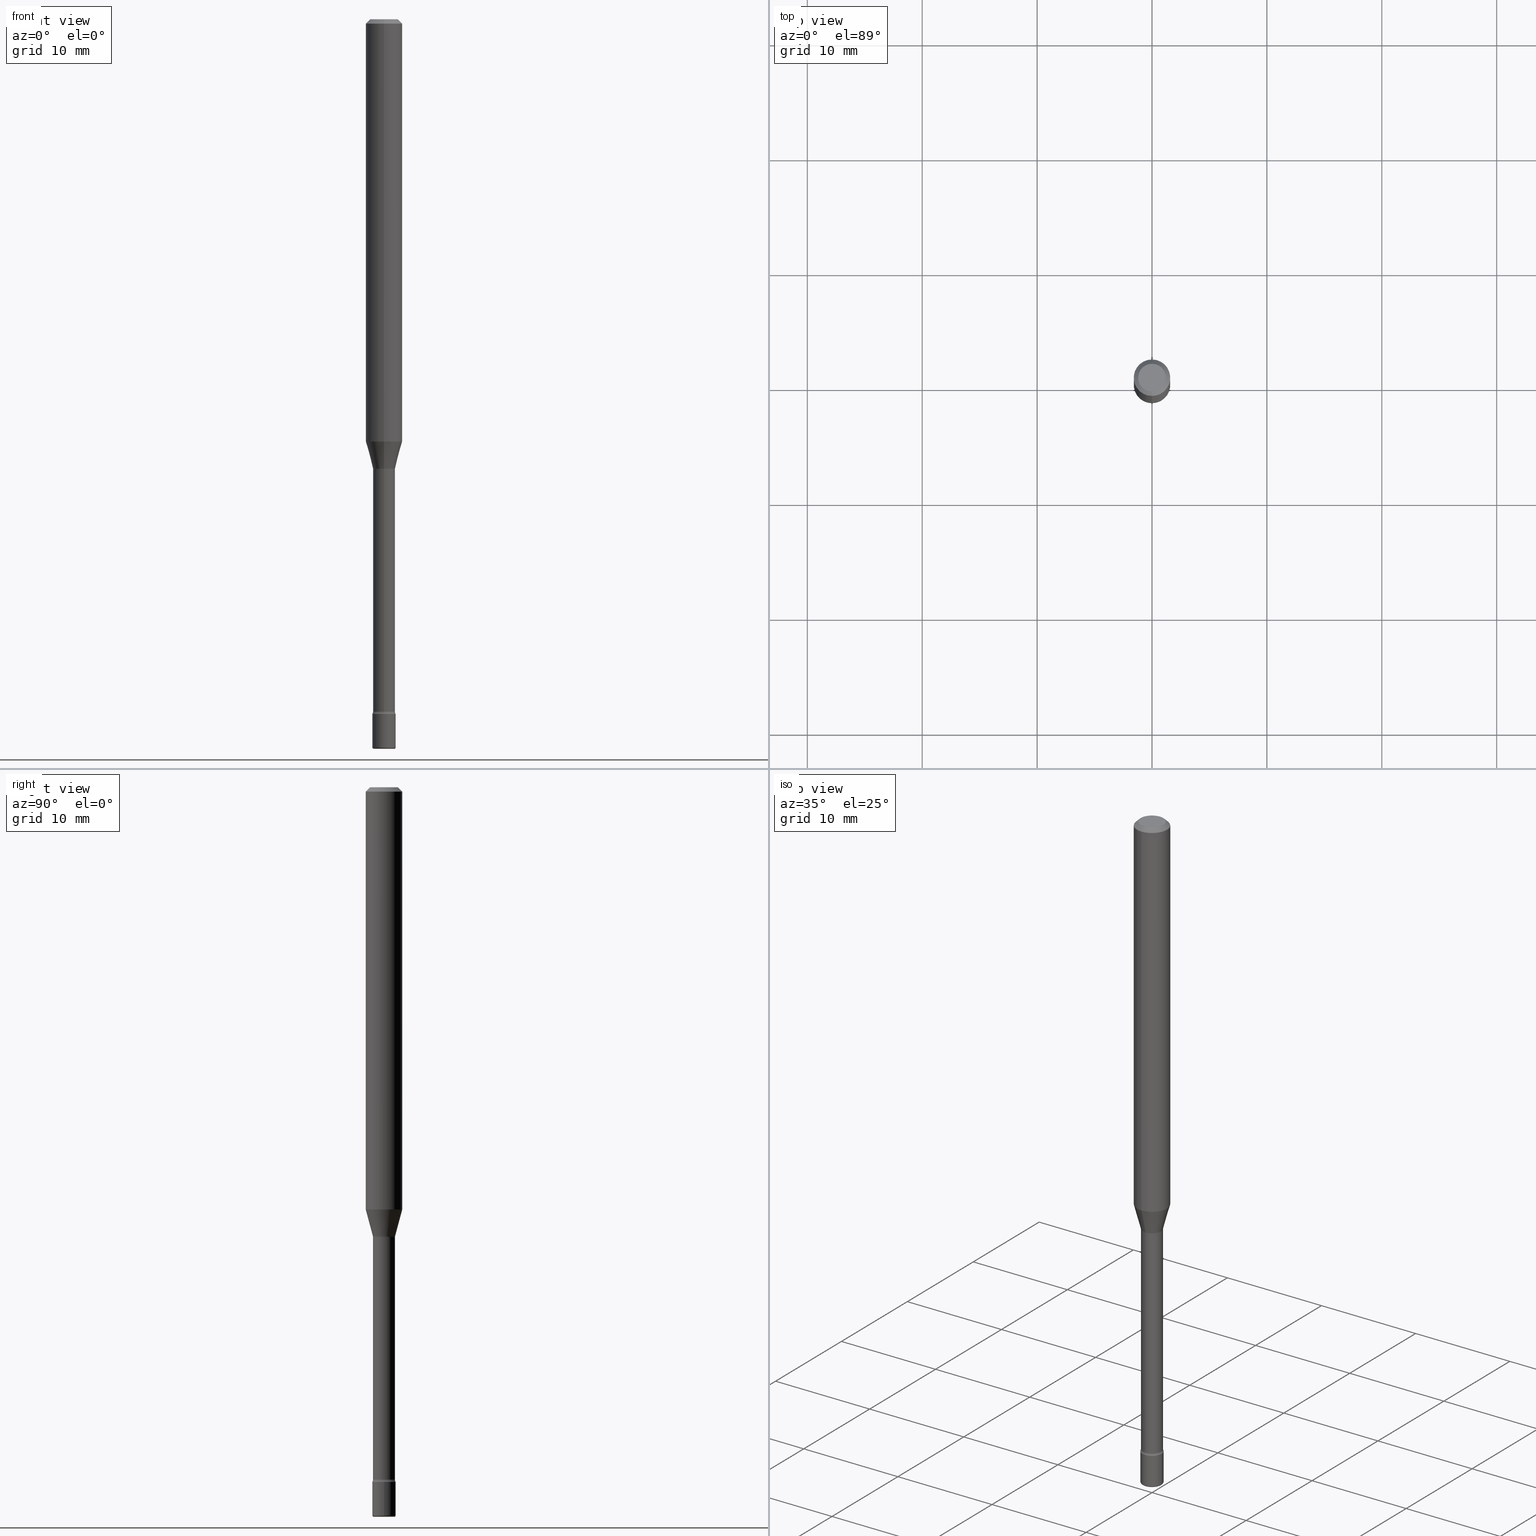
[diagram: canonical four-view strip — front | top / right | iso, engineering-drawing reading convention]
A machine part, canonical four-view strip (front | top / right | iso — engineering-drawing reading convention). The complete STEP part file that produces these views, byte-faithful:
ISO-10303-21;
HEADER;
FILE_DESCRIPTION (( 'STEP AP203' ),
    '1' );
FILE_NAME ('08943.STEP',
    '2024-03-06T20:11:49',
    ( '' ),
    ( '' ),
    'SwSTEP 2.0',
    'SolidWorks 2023',
    '' );
FILE_SCHEMA (( 'CONFIG_CONTROL_DESIGN' ));
ENDSEC;

DATA;
#1 = PERSON_AND_ORGANIZATION_ROLE ( 'design_supplier' ) ;
#2 = PLANE ( 'NONE',  #522 ) ;
#3 = ORIENTED_EDGE ( 'NONE', *, *, #94, .F. ) ;
#4 = DIRECTION ( 'NONE',  ( -2.445468806185136597E-29, 3.491481338843145583E-15, 1.000000000000000000 ) ) ;
#5 = ORIENTED_EDGE ( 'NONE', *, *, #101, .F. ) ;
#6 = CARTESIAN_POINT ( 'NONE',  ( 3.667972644630171939E-31, -5.237552189962929655E-17, -0.01500000000000002720 ) ) ;
#7 = VECTOR ( 'NONE', #489, 39.37007874015748143 ) ;
#8 = AXIS2_PLACEMENT_3D ( 'NONE', #302, #345, #468 ) ;
#9 = LOCAL_TIME ( 15, 11, 49.00000000000000000, #123 ) ;
#10 = ORIENTED_EDGE ( 'NONE', *, *, #471, .T. ) ;
#11 = DIRECTION ( 'NONE',  ( 6.982962677686265922E-15, 1.000000000000000000, -3.483106191921935554E-15 ) ) ;
#12 = EDGE_CURVE ( 'NONE', #425, #402, #155, .T. ) ;
#13 = APPROVAL_STATUS ( 'not_yet_approved' ) ;
#14 = ORIENTED_EDGE ( 'NONE', *, *, #342, .F. ) ;
#15 = CARTESIAN_POINT ( 'NONE',  ( 3.761120814310994028E-29, -5.370559834067651878E-15, -1.538092501787273081 ) ) ;
#16 = ORIENTED_EDGE ( 'NONE', *, *, #304, .F. ) ;
#17 = DIRECTION ( 'NONE',  ( -2.445468806185136597E-29, 3.491481338843145583E-15, 1.000000000000000000 ) ) ;
#18 = APPROVAL ( #126, 'UNSPECIFIED' ) ;
#19 = ORIENTED_EDGE ( 'NONE', *, *, #94, .T. ) ;
#20 = CLOSED_SHELL ( 'NONE', ( #288, #57, #475, #523, #246, #132 ) ) ;
#21 = LOCAL_TIME ( 15, 11, 49.00000000000000000, #397 ) ;
#22 = CARTESIAN_POINT ( 'NONE',  ( 2.707957421369348639E-16, 0.03811111260565861608, -1.538092501787273081 ) ) ;
#23 = ORIENTED_EDGE ( 'NONE', *, *, #342, .T. ) ;
#24 = PLANE ( 'NONE',  #301 ) ;
#25 = DIRECTION ( 'NONE',  ( -6.982962677686265922E-15, -1.000000000000000000, 3.491701459975280701E-15 ) ) ;
#26 = ORIENTED_EDGE ( 'NONE', *, *, #469, .T. ) ;
#27 = CARTESIAN_POINT ( 'NONE',  ( 2.793185071075088075E-16, 0.03999999999999169498, -2.380000000000000338 ) ) ;
#28 = FACE_OUTER_BOUND ( 'NONE', #226, .T. ) ;
#29 = DIRECTION ( 'NONE',  ( -6.982962677686265922E-15, -1.000000000000000000, 0.000000000000000000 ) ) ;
#30 = ORIENTED_EDGE ( 'NONE', *, *, #350, .F. ) ;
#31 = AXIS2_PLACEMENT_3D ( 'NONE', #440, #237, #279 ) ;
#32 = CC_DESIGN_APPROVAL ( #18, ( #116 ) ) ;
#33 = DIRECTION ( 'NONE',  ( 1.000000000000000000, -7.105427357601001070E-15, 4.926318204248481480E-29 ) ) ;
#34 = EDGE_CURVE ( 'NONE', #270, #149, #428, .T. ) ;
#35 = ORIENTED_EDGE ( 'NONE', *, *, #298, .T. ) ;
#36 = ADVANCED_FACE ( 'NONE', ( #206 ), #188, .F. ) ;
#37 = VECTOR ( 'NONE', #395, 39.37007874015748143 ) ;
#38 = EDGE_CURVE ( 'NONE', #455, #402, #380, .T. ) ;
#39 = TOROIDAL_SURFACE ( 'NONE', #8, 0.05260000000000000786, 0.01500000000000002720 ) ;
#40 = CIRCLE ( 'NONE', #369, 0.04000000000000000083 ) ;
#41 = DIRECTION ( 'NONE',  ( 1.000000000000000000, -6.982962677686274599E-15, 4.883557194083115143E-29 ) ) ;
#42 = PERSON_AND_ORGANIZATION ( #530, #390 ) ;
#43 = EDGE_CURVE ( 'NONE', #183, #494, #463, .T. ) ;
#44 = DIRECTION ( 'NONE',  ( -2.445315096420110410E-29, 3.491701459975279518E-15, 1.000000000000000000 ) ) ;
#45 = ORIENTED_EDGE ( 'NONE', *, *, #203, .F. ) ;
#46 = DIRECTION ( 'NONE',  ( 2.445315096420110410E-29, -3.491701459975279518E-15, -1.000000000000000000 ) ) ;
#47 = EDGE_LOOP ( 'NONE', ( #422, #144, #60, #35 ) ) ;
#48 = EDGE_CURVE ( 'NONE', #191, #505, #133, .T. ) ;
#49 = DIRECTION ( 'NONE',  ( 1.000000000000000000, -6.982962677686265922E-15, 4.876176775795935793E-29 ) ) ;
#50 = AXIS2_PLACEMENT_3D ( 'NONE', #110, #249, #424 ) ;
#51 = CARTESIAN_POINT ( 'NONE',  ( -3.673038368462599455E-16, -0.05260000000000539244, -1.541974787463810781 ) ) ;
#52 = EDGE_LOOP ( 'NONE', ( #415, #500, #278, #554 ) ) ;
#53 = CARTESIAN_POINT ( 'NONE',  ( -0.03500000000000000333, -8.462555982897612254E-15, -2.495000000000000107 ) ) ;
#54 = APPLICATION_CONTEXT ( 'configuration controlled 3d designs of mechanical parts and assemblies' ) ;
#55 = ORIENTED_EDGE ( 'NONE', *, *, #403, .T. ) ;
#56 = CYLINDRICAL_SURFACE ( 'NONE', #316, 0.04000000000000000083 ) ;
#57 = ADVANCED_FACE ( 'NONE', ( #28 ), #512, .T. ) ;
#58 = CARTESIAN_POINT ( 'NONE',  ( 5.800312587032241644E-29, -8.281309132162736146E-15, -2.371861204020250025 ) ) ;
#59 = DIRECTION ( 'NONE',  ( 1.000000000000000000, -6.982962677686259611E-15, 0.000000000000000000 ) ) ;
#60 = ORIENTED_EDGE ( 'NONE', *, *, #257, .T. ) ;
#61 = DIRECTION ( 'NONE',  ( -2.445315096420110410E-29, 3.491701459975279518E-15, 1.000000000000000000 ) ) ;
#62 = CARTESIAN_POINT ( 'NONE',  ( 3.667972644630171939E-31, -5.237552189962929655E-17, -0.01500000000000002720 ) ) ;
#63 = ORIENTED_EDGE ( 'NONE', *, *, #165, .F. ) ;
#64 = AXIS2_PLACEMENT_3D ( 'NONE', #15, #368, #241 ) ;
#65 = CIRCLE ( 'NONE', #169, 0.03811111260566397985 ) ;
#66 = EDGE_LOOP ( 'NONE', ( #287, #326, #442, #224 ) ) ;
#67 = DIRECTION ( 'NONE',  ( -2.445315096420110410E-29, 3.491701459975279518E-15, 1.000000000000000000 ) ) ;
#68 = CC_DESIGN_DATE_AND_TIME_ASSIGNMENT ( #180, #289, ( #255 ) ) ;
#69 = VERTEX_POINT ( 'NONE', #355 ) ;
#70 = PRODUCT_DEFINITION_SHAPE ( 'NONE', 'NONE',  #116 ) ;
#71 = ADVANCED_FACE ( 'NONE', ( #493 ), #281, .T. ) ;
#72 = ORIENTED_EDGE ( 'NONE', *, *, #209, .F. ) ;
#73 = VECTOR ( 'NONE', #393, 39.37007874015748143 ) ;
#74 = AXIS2_PLACEMENT_3D ( 'NONE', #477, #80, #265 ) ;
#75 = DIRECTION ( 'NONE',  ( -6.982962677686265922E-15, -1.000000000000000000, 3.491701459975279518E-15 ) ) ;
#76 = CIRCLE ( 'NONE', #570, 0.06250000000000000000 ) ;
#77 =( GEOMETRIC_REPRESENTATION_CONTEXT ( 3 ) GLOBAL_UNCERTAINTY_ASSIGNED_CONTEXT ( ( #95 ) ) GLOBAL_UNIT_ASSIGNED_CONTEXT ( ( #525, #411, #137 ) ) REPRESENTATION_CONTEXT ( 'NONE', 'WORKASPACE' ) );
#78 = DIRECTION ( 'NONE',  ( -2.445315096420110410E-29, 3.491701459975279518E-15, 1.000000000000000000 ) ) ;
#79 = CARTESIAN_POINT ( 'NONE',  ( 4.440892098500625669E-16, 0.06250000000000000000, 2.598420576427910934E-16 ) ) ;
#80 = DIRECTION ( 'NONE',  ( -2.445315096420110410E-29, 3.491701459975279518E-15, 1.000000000000000000 ) ) ;
#81 = ADVANCED_FACE ( 'NONE', ( #443 ), #432, .T. ) ;
#82 = COORDINATED_UNIVERSAL_TIME_OFFSET ( 5, 0, .BEHIND. ) ;
#83 = DATE_AND_TIME ( #472, #9 ) ;
#84 = FACE_OUTER_BOUND ( 'NONE', #251, .T. ) ;
#85 = CIRCLE ( 'NONE', #495, 0.004999999999999776325 ) ;
#86 = COORDINATED_UNIVERSAL_TIME_OFFSET ( 5, 0, .BEHIND. ) ;
#87 = DIRECTION ( 'NONE',  ( 1.000000000000000000, -6.982962677686282488E-15, 0.000000000000000000 ) ) ;
#88 = EDGE_LOOP ( 'NONE', ( #63, #109, #240, #445 ) ) ;
#89 = CARTESIAN_POINT ( 'NONE',  ( 3.667972644630171939E-31, -5.237552189962929655E-17, -0.01500000000000002720 ) ) ;
#90 = DIRECTION ( 'NONE',  ( -2.445315096420110130E-29, 3.491701459975279518E-15, 1.000000000000000000 ) ) ;
#91 = CARTESIAN_POINT ( 'NONE',  ( -3.773273898774339776E-16, -0.04749999999999998668, 1.387770879054626386E-16 ) ) ;
#92 = EDGE_LOOP ( 'NONE', ( #45, #487, #10, #357 ) ) ;
#93 = LINE ( 'NONE', #332, #7 ) ;
#94 = EDGE_CURVE ( 'NONE', #199, #300, #194, .T. ) ;
#95 = UNCERTAINTY_MEASURE_WITH_UNIT (LENGTH_MEASURE( 1.000000000000000082E-05 ), #525, 'distance_accuracy_value', 'NONE');
#96 = VERTEX_POINT ( 'NONE', #545 ) ;
#97 = DIRECTION ( 'NONE',  ( 6.982962677686265922E-15, 1.000000000000000000, -3.483106191921935554E-15 ) ) ;
#98 = AXIS2_PLACEMENT_3D ( 'NONE', #178, #321, #378 ) ;
#99 = APPROVAL_PERSON_ORGANIZATION ( #399, #261, #129 ) ;
#100 = ORIENTED_EDGE ( 'NONE', *, *, #213, .T. ) ;
#101 = EDGE_CURVE ( 'NONE', #96, #199, #85, .T. ) ;
#102 = DIRECTION ( 'NONE',  ( 7.105427357601001859E-15, 1.000000000000000000, 0.000000000000000000 ) ) ;
#103 = CARTESIAN_POINT ( 'NONE',  ( 6.101444671431915719E-29, -8.711245940413648329E-15, -2.495000000000000107 ) ) ;
#104 = EDGE_LOOP ( 'NONE', ( #343, #461, #72, #117 ) ) ;
#105 = FACE_OUTER_BOUND ( 'NONE', #544, .T. ) ;
#106 = PERSON_AND_ORGANIZATION_ROLE ( 'design_owner' ) ;
#107 = CARTESIAN_POINT ( 'NONE',  ( 5.820215758720625190E-29, -8.309725586446686731E-15, -2.379999999999999893 ) ) ;
#108 = COORDINATED_UNIVERSAL_TIME_OFFSET ( 5, 0, .BEHIND. ) ;
#109 = ORIENTED_EDGE ( 'NONE', *, *, #531, .T. ) ;
#110 = CARTESIAN_POINT ( 'NONE',  ( 3.770614226084447877E-29, -5.384115616632460487E-15, -1.541974787463811003 ) ) ;
#111 = AXIS2_PLACEMENT_3D ( 'NONE', #269, #4, #184 ) ;
#112 = CIRCLE ( 'NONE', #212, 0.03760000000000005699 ) ;
#113 = ORIENTED_EDGE ( 'NONE', *, *, #464, .F. ) ;
#114 = EDGE_CURVE ( 'NONE', #425, #183, #408, .T. ) ;
#115 = ORIENTED_EDGE ( 'NONE', *, *, #150, .F. ) ;
#116 = PRODUCT_DEFINITION ( 'UNKNOWN', '', #349, #290 ) ;
#117 = ORIENTED_EDGE ( 'NONE', *, *, #12, .F. ) ;
#118 = DIRECTION ( 'NONE',  ( -1.000000000000000000, 6.982962677686265922E-15, -4.876176775795935793E-29 ) ) ;
#119 = CIRCLE ( 'NONE', #419, 0.06250000000000000000 ) ;
#120 = AXIS2_PLACEMENT_3D ( 'NONE', #222, #127, #216 ) ;
#121 = EDGE_CURVE ( 'NONE', #183, #425, #119, .T. ) ;
#122 = APPROVAL_DATE_TIME ( #473, #280 ) ;
#123 = COORDINATED_UNIVERSAL_TIME_OFFSET ( 5, 0, .BEHIND. ) ;
#124 = AXIS2_PLACEMENT_3D ( 'NONE', #6, #363, #11 ) ;
#125 = AXIS2_PLACEMENT_3D ( 'NONE', #175, #348, #87 ) ;
#126 = APPROVAL_STATUS ( 'not_yet_approved' ) ;
#127 = DIRECTION ( 'NONE',  ( -1.000000000000000000, 6.982962677686265922E-15, -4.883557194083112340E-29 ) ) ;
#128 = CARTESIAN_POINT ( 'NONE',  ( 2.671640686458558589E-16, 0.03759999999999461689, -1.541974787463811003 ) ) ;
#129 = APPROVAL_ROLE ( '' ) ;
#130 = DIRECTION ( 'NONE',  ( -2.438088387897960049E-29, 3.491481338843145188E-15, 1.000000000000000000 ) ) ;
#131 = ORIENTED_EDGE ( 'NONE', *, *, #388, .T. ) ;
#132 = ADVANCED_FACE ( 'NONE', ( #491 ), #56, .T. ) ;
#133 = CIRCLE ( 'NONE', #98, 0.03811111260566397985 ) ;
#134 = CIRCLE ( 'NONE', #486, 0.04000000000000000083 ) ;
#135 = ORIENTED_EDGE ( 'NONE', *, *, #312, .F. ) ;
#136 = DIRECTION ( 'NONE',  ( 7.105427357601001859E-15, 1.000000000000000000, -3.491481338843145583E-15 ) ) ;
#137 =( NAMED_UNIT ( * ) SI_UNIT ( $, .STERADIAN. ) SOLID_ANGLE_UNIT ( ) );
#138 = FACE_OUTER_BOUND ( 'NONE', #88, .T. ) ;
#139 = ORIENTED_EDGE ( 'NONE', *, *, #220, .T. ) ;
#140 = CARTESIAN_POINT ( 'NONE',  ( 2.444036937190804617E-16, 0.03499999999999127420, -2.500000000000000000 ) ) ;
#141 = DIMENSIONAL_EXPONENTS ( 1.000000000000000000, 0.000000000000000000, 0.000000000000000000, 0.000000000000000000, 0.000000000000000000, 0.000000000000000000, 0.000000000000000000 ) ;
#142 = CARTESIAN_POINT ( 'NONE',  ( -0.03999999999999989675, -8.427028846109609580E-15, -2.495000000000000107 ) ) ;
#143 = DIRECTION ( 'NONE',  ( -6.982962677686265922E-15, -1.000000000000000000, 3.483106191921935554E-15 ) ) ;
#144 = ORIENTED_EDGE ( 'NONE', *, *, #220, .F. ) ;
#145 = DIRECTION ( 'NONE',  ( -6.982962677686265133E-15, -1.000000000000000000, 3.491701459975279518E-15 ) ) ;
#146 = CIRCLE ( 'NONE', #218, 0.01500000000000002720 ) ;
#147 = FACE_OUTER_BOUND ( 'NONE', #104, .T. ) ;
#148 = APPROVAL_PERSON_ORGANIZATION ( #454, #280, #553 ) ;
#149 = VERTEX_POINT ( 'NONE', #227 ) ;
#150 = EDGE_CURVE ( 'NONE', #505, #183, #152, .T. ) ;
#151 = CC_DESIGN_PERSON_AND_ORGANIZATION_ASSIGNMENT ( #214, #478, ( #255 ) ) ;
#152 = LINE ( 'NONE', #22, #536 ) ;
#153 = DIRECTION ( 'NONE',  ( -6.982962677686267499E-15, -1.000000000000000000, 0.000000000000000000 ) ) ;
#154 = CALENDAR_DATE ( 2024, 6, 3 ) ;
#155 = LINE ( 'NONE', #557, #389 ) ;
#156 = DIRECTION ( 'NONE',  ( -1.807323732225330534E-15, -0.2588190451025182415, 0.9659258262890689783 ) ) ;
#157 = ORIENTED_EDGE ( 'NONE', *, *, #209, .T. ) ;
#158 = CC_DESIGN_PERSON_AND_ORGANIZATION_ASSIGNMENT ( #542, #262, ( #349 ) ) ;
#159 = CARTESIAN_POINT ( 'NONE',  ( -4.287811248607203282E-16, -0.06250000000000005551, -0.01499999999999981036 ) ) ;
#160 = AXIS2_PLACEMENT_3D ( 'NONE', #405, #353, #537 ) ;
#161 = ORIENTED_EDGE ( 'NONE', *, *, #322, .F. ) ;
#162 = CARTESIAN_POINT ( 'NONE',  ( 5.799948008803896804E-29, -8.281831228936231021E-15, -2.371861204020250025 ) ) ;
#163 = LINE ( 'NONE', #398, #37 ) ;
#164 = ORIENTED_EDGE ( 'NONE', *, *, #507, .F. ) ;
#165 = EDGE_CURVE ( 'NONE', #547, #270, #93, .T. ) ;
#166 = DIRECTION ( 'NONE',  ( 2.445315096420110130E-29, -3.491701459975279518E-15, -1.000000000000000000 ) ) ;
#167 = CYLINDRICAL_SURFACE ( 'NONE', #409, 0.03760000000000002923 ) ;
#168 = CIRCLE ( 'NONE', #329, 0.04000000000000000083 ) ;
#169 = AXIS2_PLACEMENT_3D ( 'NONE', #516, #44, #401 ) ;
#170 = CARTESIAN_POINT ( 'NONE',  ( -4.364351673553565651E-16, -0.06250000000000509315, -1.447071934891535072 ) ) ;
#171 = PRODUCT_RELATED_PRODUCT_CATEGORY ( 'detail', '', ( #560 ) ) ;
#172 = PERSON_AND_ORGANIZATION_ROLE ( 'creator' ) ;
#173 = CARTESIAN_POINT ( 'NONE',  ( 3.737454790098504217E-16, 0.05259999999999462328, -1.541974787463811225 ) ) ;
#174 = ADVANCED_FACE ( 'NONE', ( #225 ), #483, .T. ) ;
#175 = CARTESIAN_POINT ( 'NONE',  ( 6.101444671431915719E-29, -8.711245940413648329E-15, -2.495000000000000107 ) ) ;
#176 = AXIS2_PLACEMENT_3D ( 'NONE', #296, #517, #558 ) ;
#177 = LOCAL_TIME ( 15, 11, 49.00000000000000000, #86 ) ;
#178 = CARTESIAN_POINT ( 'NONE',  ( 3.761120814310994028E-29, -5.370559834067651878E-15, -1.538092501787273081 ) ) ;
#179 = DIRECTION ( 'NONE',  ( -2.445468806185136597E-29, 3.491481338843145583E-15, 1.000000000000000000 ) ) ;
#180 = DATE_AND_TIME ( #221, #571 ) ;
#181 = MECHANICAL_CONTEXT ( 'NONE', #470, 'mechanical' ) ;
#182 = CARTESIAN_POINT ( 'NONE',  ( 5.820215758720625190E-29, -8.309725586446686731E-15, -2.379999999999999893 ) ) ;
#183 = VERTEX_POINT ( 'NONE', #276 ) ;
#184 = DIRECTION ( 'NONE',  ( 1.000000000000000000, -6.982962677686265922E-15, 4.876176775795935793E-29 ) ) ;
#185 = ORIENTED_EDGE ( 'NONE', *, *, #203, .T. ) ;
#186 = DIRECTION ( 'NONE',  ( -2.445468806185136877E-29, 3.491481338843145188E-15, 1.000000000000000000 ) ) ;
#187 = AXIS2_PLACEMENT_3D ( 'NONE', #271, #365, #145 ) ;
#188 = TOROIDAL_SURFACE ( 'NONE', #176, 0.05260000000000000786, 0.01500000000000002720 ) ;
#189 = VECTOR ( 'NONE', #562, 39.37007874015748143 ) ;
#190 = DIRECTION ( 'NONE',  ( 1.000000000000000000, -6.982962677686276966E-15, 0.000000000000000000 ) ) ;
#191 = VERTEX_POINT ( 'NONE', #410 ) ;
#192 = DIRECTION ( 'NONE',  ( -6.982962677686265922E-15, -1.000000000000000000, 3.483106191921935554E-15 ) ) ;
#193 = ORIENTED_EDGE ( 'NONE', *, *, #480, .T. ) ;
#194 = LINE ( 'NONE', #548, #456 ) ;
#195 = ORIENTED_EDGE ( 'NONE', *, *, #331, .T. ) ;
#196 = DIRECTION ( 'NONE',  ( 1.000000000000000000, -6.982962677686276966E-15, 0.000000000000000000 ) ) ;
#197 = AXIS2_PLACEMENT_3D ( 'NONE', #89, #325, #192 ) ;
#198 = AXIS2_PLACEMENT_3D ( 'NONE', #103, #285, #239 ) ;
#199 = VERTEX_POINT ( 'NONE', #142 ) ;
#200 = DIRECTION ( 'NONE',  ( 1.000000000000000000, -7.105427357601001070E-15, 4.926318204248481480E-29 ) ) ;
#201 = CARTESIAN_POINT ( 'NONE',  ( 4.440892098500982135E-16, 0.06249999999999995143, -0.01500000000000024578 ) ) ;
#202 = ORIENTED_EDGE ( 'NONE', *, *, #34, .T. ) ;
#203 = EDGE_CURVE ( 'NONE', #547, #337, #299, .T. ) ;
#204 = DIRECTION ( 'NONE',  ( 1.000000000000000000, -6.982962677686265922E-15, 4.876176775795935793E-29 ) ) ;
#205 = CARTESIAN_POINT ( 'NONE',  ( 0.03500000000000000333, -8.973107040826881753E-15, -2.499999999999999556 ) ) ;
#206 = FACE_OUTER_BOUND ( 'NONE', #320, .T. ) ;
#207 = EDGE_LOOP ( 'NONE', ( #30, #334 ) ) ;
#208 = CIRCLE ( 'NONE', #74, 0.03760000000000000842 ) ;
#209 = EDGE_CURVE ( 'NONE', #402, #494, #253, .T. ) ;
#210 = EDGE_LOOP ( 'NONE', ( #3, #254, #515, #14 ) ) ;
#211 = FACE_OUTER_BOUND ( 'NONE', #52, .T. ) ;
#212 = AXIS2_PLACEMENT_3D ( 'NONE', #242, #514, #29 ) ;
#213 = EDGE_CURVE ( 'NONE', #367, #96, #465, .T. ) ;
#214 = PERSON_AND_ORGANIZATION ( #530, #390 ) ;
#215 = PERSON_AND_ORGANIZATION ( #530, #390 ) ;
#216 = DIRECTION ( 'NONE',  ( -6.982962677686266711E-15, -1.000000000000000000, 0.000000000000000000 ) ) ;
#217 = CC_DESIGN_PERSON_AND_ORGANIZATION_ASSIGNMENT ( #503, #106, ( #560 ) ) ;
#218 = AXIS2_PLACEMENT_3D ( 'NONE', #51, #235, #153 ) ;
#219 = TOROIDAL_SURFACE ( 'NONE', #308, 0.05260000000000002174, 0.01499999999999996822 ) ;
#220 = EDGE_CURVE ( 'NONE', #69, #455, #358, .T. ) ;
#221 = CALENDAR_DATE ( 2024, 6, 3 ) ;
#222 = CARTESIAN_POINT ( 'NONE',  ( -3.673038368462397802E-16, -0.05260000000000830678, -2.371861204020249581 ) ) ;
#223 = DIRECTION ( 'NONE',  ( -2.445315096420110130E-29, 3.491701459975279518E-15, 1.000000000000000000 ) ) ;
#224 = ORIENTED_EDGE ( 'NONE', *, *, #298, .F. ) ;
#225 = FACE_OUTER_BOUND ( 'NONE', #47, .T. ) ;
#226 = EDGE_LOOP ( 'NONE', ( #100, #330, #164, #291 ) ) ;
#227 = CARTESIAN_POINT ( 'NONE',  ( -2.625593966809659350E-16, -0.03760000000000538606, -1.541974787463811003 ) ) ;
#228 = AXIS2_PLACEMENT_3D ( 'NONE', #555, #416, #284 ) ;
#229 = CIRCLE ( 'NONE', #125, 0.04000000000000000777 ) ;
#230 = CARTESIAN_POINT ( 'NONE',  ( 2.842170943040980615E-16, 0.03999999999999167416, -2.380000000000000338 ) ) ;
#231 = ORIENTED_EDGE ( 'NONE', *, *, #331, .F. ) ;
#232 = MANIFOLD_SOLID_BREP ( 'Body-Move/Copy2[2]', #306 ) ;
#233 = DIRECTION ( 'NONE',  ( 1.839019923739600710E-15, 0.2588190451025250138, 0.9659258262890670910 ) ) ;
#234 = EDGE_CURVE ( 'NONE', #367, #293, #521, .T. ) ;
#235 = DIRECTION ( 'NONE',  ( -1.000000000000000000, 6.982962677686265922E-15, -4.883557194083112340E-29 ) ) ;
#236 = ORIENTED_EDGE ( 'NONE', *, *, #257, .F. ) ;
#237 = DIRECTION ( 'NONE',  ( -2.445468806185136597E-29, 3.491481338843145583E-15, 1.000000000000000000 ) ) ;
#238 = MANIFOLD_SOLID_BREP ( 'Body-Move/Copy2[1]', #20 ) ;
#239 = DIRECTION ( 'NONE',  ( 1.000000000000000000, -6.982962677686282488E-15, 0.000000000000000000 ) ) ;
#240 = ORIENTED_EDGE ( 'NONE', *, *, #266, .T. ) ;
#241 = DIRECTION ( 'NONE',  ( -6.982962677686266711E-15, -1.000000000000000000, 0.000000000000000000 ) ) ;
#242 = CARTESIAN_POINT ( 'NONE',  ( 5.799948008803896804E-29, -8.281831228936231021E-15, -2.371861204020250025 ) ) ;
#243 = VECTOR ( 'NONE', #223, 39.37007874015748143 ) ;
#244 = CIRCLE ( 'NONE', #198, 0.04000000000000000777 ) ;
#245 = APPLICATION_PROTOCOL_DEFINITION ( 'international standard', 'config_control_design', 1994, #54 ) ;
#246 = ADVANCED_FACE ( 'NONE', ( #105 ), #339, .T. ) ;
#247 = ORIENTED_EDGE ( 'NONE', *, *, #38, .T. ) ;
#248 = CARTESIAN_POINT ( 'NONE',  ( 0.04000000000000000083, -2.793185071074506290E-16, 1.950470710318374387E-30 ) ) ;
#249 = DIRECTION ( 'NONE',  ( -2.445315096420110410E-29, 3.491701459975279518E-15, 1.000000000000000000 ) ) ;
#250 =( LENGTH_UNIT ( ) NAMED_UNIT ( * ) SI_UNIT ( $, .METRE. ) );
#251 = EDGE_LOOP ( 'NONE', ( #195, #23 ) ) ;
#252 = CARTESIAN_POINT ( 'NONE',  ( 5.819849929479863427E-29, -8.310249474741165062E-15, -2.379999999999999893 ) ) ;
#253 = CIRCLE ( 'NONE', #197, 0.06250000000000000000 ) ;
#254 = ORIENTED_EDGE ( 'NONE', *, *, #450, .T. ) ;
#255 = SECURITY_CLASSIFICATION ( '', '', #476 ) ;
#256 = DIRECTION ( 'NONE',  ( 7.105427357601001859E-15, 1.000000000000000000, 0.000000000000000000 ) ) ;
#257 = EDGE_CURVE ( 'NONE', #69, #494, #163, .T. ) ;
#258 = CC_DESIGN_PERSON_AND_ORGANIZATION_ASSIGNMENT ( #310, #1, ( #349 ) ) ;
#259 = DIRECTION ( 'NONE',  ( -6.982962677686265922E-15, -1.000000000000000000, 0.000000000000000000 ) ) ;
#260 = DIRECTION ( 'NONE',  ( -6.982962677686266711E-15, -1.000000000000000000, 0.000000000000000000 ) ) ;
#261 = APPROVAL ( #352, 'UNSPECIFIED' ) ;
#262 = PERSON_AND_ORGANIZATION_ROLE ( 'creator' ) ;
#263 = CYLINDRICAL_SURFACE ( 'NONE', #340, 0.06250000000000000000 ) ;
#264 = APPROVAL_ROLE ( '' ) ;
#265 = DIRECTION ( 'NONE',  ( -6.982962677686265922E-15, -1.000000000000000000, 0.000000000000000000 ) ) ;
#266 = EDGE_CURVE ( 'NONE', #387, #149, #351, .T. ) ;
#267 = AXIS2_PLACEMENT_3D ( 'NONE', #414, #460, #59 ) ;
#268 = AXIS2_PLACEMENT_3D ( 'NONE', #162, #67, #259 ) ;
#269 = CARTESIAN_POINT ( 'NONE',  ( 0.000000000000000000, 0.000000000000000000, 0.000000000000000000 ) ) ;
#270 = VERTEX_POINT ( 'NONE', #128 ) ;
#271 = CARTESIAN_POINT ( 'NONE',  ( 6.614254624055285682E-46, -9.465608017287662254E-32, -2.707873144336310870E-17 ) ) ;
#272 = DIRECTION ( 'NONE',  ( -2.445315096420110410E-29, 3.491701459975279518E-15, 1.000000000000000000 ) ) ;
#273 = CARTESIAN_POINT ( 'NONE',  ( 6.614254624055285682E-46, -9.465608017287662254E-32, -2.707873144336310870E-17 ) ) ;
#274 = ORIENTED_EDGE ( 'NONE', *, *, #48, .T. ) ;
#275 = DIRECTION ( 'NONE',  ( -6.982962677686265922E-15, -1.000000000000000000, 3.491701459975280701E-15 ) ) ;
#276 = CARTESIAN_POINT ( 'NONE',  ( 4.440892098500976219E-16, 0.06249999999999491379, -1.447071934891535516 ) ) ;
#277 = CYLINDRICAL_SURFACE ( 'NONE', #457, 0.03760000000000002923 ) ;
#278 = ORIENTED_EDGE ( 'NONE', *, *, #469, .F. ) ;
#279 = DIRECTION ( 'NONE',  ( 1.000000000000000000, -6.982962677686274599E-15, 4.883557194083115143E-29 ) ) ;
#280 = APPROVAL ( #13, 'UNSPECIFIED' ) ;
#281 = CONICAL_SURFACE ( 'NONE', #64, 0.03811111260566397985, 0.2617993877991502960 ) ;
#282 = APPROVAL_PERSON_ORGANIZATION ( #215, #18, #264 ) ;
#283 = ORIENTED_EDGE ( 'NONE', *, *, #234, .T. ) ;
#284 = DIRECTION ( 'NONE',  ( -6.982962677686265922E-15, -1.000000000000000000, 4.370956789862821150E-15 ) ) ;
#285 = DIRECTION ( 'NONE',  ( -2.445468806185136597E-29, 3.491481338843145583E-15, 1.000000000000000000 ) ) ;
#286 = CYLINDRICAL_SURFACE ( 'NONE', #474, 0.06250000000000000000 ) ;
#287 = ORIENTED_EDGE ( 'NONE', *, *, #43, .F. ) ;
#288 = ADVANCED_FACE ( 'NONE', ( #400 ), #481, .T. ) ;
#289 = DATE_TIME_ROLE ( 'classification_date' ) ;
#290 = DESIGN_CONTEXT ( 'detailed design', #54, 'design' ) ;
#291 = ORIENTED_EDGE ( 'NONE', *, *, #234, .F. ) ;
#292 = TOROIDAL_SURFACE ( 'NONE', #433, 0.05260000000000002174, 0.01499999999999996822 ) ;
#293 = VERTEX_POINT ( 'NONE', #482 ) ;
#294 = DIRECTION ( 'NONE',  ( -4.851104656540965064E-15, -0.7071067811865501263, -0.7071067811865449082 ) ) ;
#295 = DIRECTION ( 'NONE',  ( -6.982962677686265922E-15, -1.000000000000000000, 3.491701459975279518E-15 ) ) ;
#296 = CARTESIAN_POINT ( 'NONE',  ( 3.770851242666705328E-29, -5.383776195396521708E-15, -1.541974787463811003 ) ) ;
#297 = ADVANCED_FACE ( 'NONE', ( #147 ), #286, .T. ) ;
#298 = EDGE_CURVE ( 'NONE', #494, #402, #76, .T. ) ;
#299 = CIRCLE ( 'NONE', #346, 0.01499999999999996822 ) ;
#300 = VERTEX_POINT ( 'NONE', #406 ) ;
#301 = AXIS2_PLACEMENT_3D ( 'NONE', #27, #90, #295 ) ;
#302 = CARTESIAN_POINT ( 'NONE',  ( 3.770851242666705328E-29, -5.383776195396521708E-15, -1.541974787463811003 ) ) ;
#303 = ADVANCED_BREP_SHAPE_REPRESENTATION ( '08943', ( #238, #232, #160 ), #77 ) ;
#304 = EDGE_CURVE ( 'NONE', #96, #367, #396, .T. ) ;
#305 = PLANE ( 'NONE',  #566 ) ;
#306 = CLOSED_SHELL ( 'NONE', ( #36, #438, #496, #81, #297, #391, #71, #441, #174, #572, #374, #394, #366, #431 ) ) ;
#307 = DATE_TIME_ROLE ( 'creation_date' ) ;
#308 = AXIS2_PLACEMENT_3D ( 'NONE', #567, #427, #75 ) ;
#309 = CARTESIAN_POINT ( 'NONE',  ( 0.04000000000000000083, -8.589044093554136769E-15, -2.379999999999999893 ) ) ;
#310 = PERSON_AND_ORGANIZATION ( #530, #390 ) ;
#311 = DIRECTION ( 'NONE',  ( -6.982962677686265133E-15, -1.000000000000000000, 3.491701459975279518E-15 ) ) ;
#312 = EDGE_CURVE ( 'NONE', #191, #149, #146, .T. ) ;
#313 = DATE_AND_TIME ( #524, #21 ) ;
#314 = APPROVAL_DATE_TIME ( #546, #261 ) ;
#315 = ORIENTED_EDGE ( 'NONE', *, *, #507, .T. ) ;
#316 = AXIS2_PLACEMENT_3D ( 'NONE', #418, #317, #49 ) ;
#317 = DIRECTION ( 'NONE',  ( -2.445468806185136597E-29, 3.491481338843145583E-15, 1.000000000000000000 ) ) ;
#318 = AXIS2_PLACEMENT_3D ( 'NONE', #140, #338, #118 ) ;
#319 = CARTESIAN_POINT ( 'NONE',  ( 3.761120814310994028E-29, -5.370559834067651878E-15, -1.538092501787273081 ) ) ;
#320 = EDGE_LOOP ( 'NONE', ( #385, #55, #202, #135 ) ) ;
#321 = DIRECTION ( 'NONE',  ( -2.445315096420110410E-29, 3.491701459975279518E-15, 1.000000000000000000 ) ) ;
#322 = EDGE_CURVE ( 'NONE', #191, #425, #499, .T. ) ;
#323 = DIRECTION ( 'NONE',  ( -2.445468806185136597E-29, 3.491481338843145583E-15, 1.000000000000000000 ) ) ;
#324 = ORIENTED_EDGE ( 'NONE', *, *, #114, .F. ) ;
#325 = DIRECTION ( 'NONE',  ( -2.445315096420110410E-29, 3.491701459975279518E-15, 1.000000000000000000 ) ) ;
#326 = ORIENTED_EDGE ( 'NONE', *, *, #121, .T. ) ;
#327 = DIRECTION ( 'NONE',  ( -6.982962677686266711E-15, -1.000000000000000000, 3.491481338843145583E-15 ) ) ;
#328 = AXIS2_PLACEMENT_3D ( 'NONE', #435, #179, #41 ) ;
#329 = AXIS2_PLACEMENT_3D ( 'NONE', #361, #504, #543 ) ;
#330 = ORIENTED_EDGE ( 'NONE', *, *, #101, .T. ) ;
#331 = EDGE_CURVE ( 'NONE', #439, #300, #40, .T. ) ;
#332 = CARTESIAN_POINT ( 'NONE',  ( 2.671640686457978776E-16, 0.03760000000000002923, 3.467854239961754309E-16 ) ) ;
#333 = CARTESIAN_POINT ( 'NONE',  ( -2.661284769304125735E-16, -0.03811111260566935055, -1.538092501787273081 ) ) ;
#334 = ORIENTED_EDGE ( 'NONE', *, *, #480, .F. ) ;
#335 = DIRECTION ( 'NONE',  ( -6.982962677686265922E-15, -1.000000000000000000, 3.491701459975279518E-15 ) ) ;
#336 = DIRECTION ( 'NONE',  ( -2.445315096420110410E-29, 3.491701459975279518E-15, 1.000000000000000000 ) ) ;
#337 = VERTEX_POINT ( 'NONE', #230 ) ;
#338 = DIRECTION ( 'NONE',  ( 2.438088387897960049E-29, -3.491481338843145188E-15, -1.000000000000000000 ) ) ;
#339 = TOROIDAL_SURFACE ( 'NONE', #328, 0.03500000000000000333, 0.004999999999999771988 ) ;
#340 = AXIS2_PLACEMENT_3D ( 'NONE', #569, #538, #568 ) ;
#341 = ORIENTED_EDGE ( 'NONE', *, *, #471, .F. ) ;
#342 = EDGE_CURVE ( 'NONE', #300, #439, #436, .T. ) ;
#343 = ORIENTED_EDGE ( 'NONE', *, *, #114, .T. ) ;
#344 = DIRECTION ( 'NONE',  ( 6.982962677686265922E-15, 1.000000000000000000, -3.491701459975279518E-15 ) ) ;
#345 = DIRECTION ( 'NONE',  ( -2.445315096420110410E-29, 3.491701459975279518E-15, 1.000000000000000000 ) ) ;
#346 = AXIS2_PLACEMENT_3D ( 'NONE', #501, #200, #102 ) ;
#347 = CARTESIAN_POINT ( 'NONE',  ( -1.169113584055446105E-44, 1.669184350826100908E-30, 4.780733988912460139E-16 ) ) ;
#348 = DIRECTION ( 'NONE',  ( -2.445468806185136597E-29, 3.491481338843145583E-15, 1.000000000000000000 ) ) ;
#349 = PRODUCT_DEFINITION_FORMATION_WITH_SPECIFIED_SOURCE ( 'ANY', '', #560, .NOT_KNOWN. ) ;
#350 = EDGE_CURVE ( 'NONE', #540, #337, #168, .T. ) ;
#351 = LINE ( 'NONE', #532, #243 ) ;
#352 = APPROVAL_STATUS ( 'not_yet_approved' ) ;
#353 = DIRECTION ( 'NONE',  ( 0.000000000000000000, 0.000000000000000000, 1.000000000000000000 ) ) ;
#354 = ORIENTED_EDGE ( 'NONE', *, *, #312, .T. ) ;
#355 = CARTESIAN_POINT ( 'NONE',  ( 3.840629472727447874E-16, 0.04749999999999998668, -1.929345507921888436E-16 ) ) ;
#356 = FACE_OUTER_BOUND ( 'NONE', #520, .T. ) ;
#357 = ORIENTED_EDGE ( 'NONE', *, *, #350, .T. ) ;
#358 = CIRCLE ( 'NONE', #187, 0.04749999999999998668 ) ;
#359 = CC_DESIGN_DATE_AND_TIME_ASSIGNMENT ( #83, #307, ( #116 ) ) ;
#360 = AXIS2_PLACEMENT_3D ( 'NONE', #319, #272, #260 ) ;
#361 = CARTESIAN_POINT ( 'NONE',  ( 5.819849929479863427E-29, -8.310249474741165062E-15, -2.379999999999999893 ) ) ;
#362 = EDGE_LOOP ( 'NONE', ( #139, #490 ) ) ;
#363 = DIRECTION ( 'NONE',  ( 2.445315096420110410E-29, -3.491701459975279518E-15, -1.000000000000000000 ) ) ;
#364 = EDGE_LOOP ( 'NONE', ( #448, #429, #354, #26 ) ) ;
#365 = DIRECTION ( 'NONE',  ( -2.445315096420110410E-29, 3.491701459975279518E-15, 1.000000000000000000 ) ) ;
#366 = ADVANCED_FACE ( 'NONE', ( #138 ), #277, .T. ) ;
#367 = VERTEX_POINT ( 'NONE', #205 ) ;
#368 = DIRECTION ( 'NONE',  ( -2.445315096420110410E-29, 3.491701459975279518E-15, 1.000000000000000000 ) ) ;
#369 = AXIS2_PLACEMENT_3D ( 'NONE', #107, #421, #509 ) ;
#370 = CIRCLE ( 'NONE', #559, 0.04749999999999998668 ) ;
#371 = DIRECTION ( 'NONE',  ( -2.445315096420110410E-29, 3.491701459975279518E-15, 1.000000000000000000 ) ) ;
#372 = ORIENTED_EDGE ( 'NONE', *, *, #150, .T. ) ;
#373 = DIRECTION ( 'NONE',  ( -1.000000000000000000, 7.105427357601049190E-15, 0.000000000000000000 ) ) ;
#374 = ADVANCED_FACE ( 'NONE', ( #535 ), #24, .F. ) ;
#375 = PLANE ( 'NONE',  #318 ) ;
#376 = DIRECTION ( 'NONE',  ( -6.982962677686265922E-15, -1.000000000000000000, 3.491701459975279518E-15 ) ) ;
#377 = EDGE_LOOP ( 'NONE', ( #113, #247, #157, #236 ) ) ;
#378 = DIRECTION ( 'NONE',  ( -6.982962677686266711E-15, -1.000000000000000000, 0.000000000000000000 ) ) ;
#379 = CARTESIAN_POINT ( 'NONE',  ( -1.169113584055446105E-44, 1.669184350826100908E-30, 4.780733988912460139E-16 ) ) ;
#380 = LINE ( 'NONE', #159, #528 ) ;
#381 = CARTESIAN_POINT ( 'NONE',  ( -2.625593966809460162E-16, -0.03760000000000833509, -2.371861204020250025 ) ) ;
#382 = AXIS2_PLACEMENT_3D ( 'NONE', #541, #46, #97 ) ;
#383 = FACE_OUTER_BOUND ( 'NONE', #462, .T. ) ;
#384 = AXIS2_PLACEMENT_3D ( 'NONE', #173, #33, #256 ) ;
#385 = ORIENTED_EDGE ( 'NONE', *, *, #388, .F. ) ;
#386 = CARTESIAN_POINT ( 'NONE',  ( 3.574424759935165140E-16, 0.03811111260565861608, -1.538092501787273081 ) ) ;
#387 = VERTEX_POINT ( 'NONE', #381 ) ;
#388 = EDGE_CURVE ( 'NONE', #505, #191, #65, .T. ) ;
#389 = VECTOR ( 'NONE', #510, 39.37007874015748143 ) ;
#390 = ORGANIZATION ( 'UNSPECIFIED', 'UNSPECIFIED', '' ) ;
#391 = ADVANCED_FACE ( 'NONE', ( #356 ), #447, .T. ) ;
#392 = LENGTH_MEASURE_WITH_UNIT ( LENGTH_MEASURE( 0.02539999999999999897 ), #250 );
#393 = DIRECTION ( 'NONE',  ( -2.445315096420110130E-29, 3.491701459975279518E-15, 1.000000000000000000 ) ) ;
#394 = ADVANCED_FACE ( 'NONE', ( #519 ), #219, .F. ) ;
#395 = DIRECTION ( 'NONE',  ( 4.937700262164548831E-15, 0.7071067811865452413, -0.7071067811865497932 ) ) ;
#396 = CIRCLE ( 'NONE', #565, 0.03500000000000000333 ) ;
#397 = COORDINATED_UNIVERSAL_TIME_OFFSET ( 5, 0, .BEHIND. ) ;
#398 = CARTESIAN_POINT ( 'NONE',  ( 4.364351673553919652E-16, 0.06249999999999995143, -0.01500000000000024578 ) ) ;
#399 = PERSON_AND_ORGANIZATION ( #530, #390 ) ;
#400 = FACE_OUTER_BOUND ( 'NONE', #563, .T. ) ;
#401 = DIRECTION ( 'NONE',  ( -6.982962677686266711E-15, -1.000000000000000000, 0.000000000000000000 ) ) ;
#402 = VERTEX_POINT ( 'NONE', #434 ) ;
#403 = EDGE_CURVE ( 'NONE', #505, #270, #539, .T. ) ;
#404 = DIRECTION ( 'NONE',  ( -6.982962677686265922E-15, -1.000000000000000000, 4.370956789862821150E-15 ) ) ;
#405 = CARTESIAN_POINT ( 'NONE',  ( 0.000000000000000000, 0.000000000000000000, 0.000000000000000000 ) ) ;
#406 = CARTESIAN_POINT ( 'NONE',  ( -0.04000000000000000083, -8.226268669126126415E-15, -2.379999999999999893 ) ) ;
#407 = ORIENTED_EDGE ( 'NONE', *, *, #531, .F. ) ;
#408 = CIRCLE ( 'NONE', #228, 0.06250000000000000000 ) ;
#409 = AXIS2_PLACEMENT_3D ( 'NONE', #347, #78, #275 ) ;
#410 = CARTESIAN_POINT ( 'NONE',  ( -2.661284769304125735E-16, -0.03811111260566935055, -1.538092501787273081 ) ) ;
#411 =( NAMED_UNIT ( * ) PLANE_ANGLE_UNIT ( ) SI_UNIT ( $, .RADIAN. ) );
#412 = ORIENTED_EDGE ( 'NONE', *, *, #213, .F. ) ;
#413 = CARTESIAN_POINT ( 'NONE',  ( 6.113672015462840371E-29, -8.728703347107863365E-15, -2.499999999999999556 ) ) ;
#414 = CARTESIAN_POINT ( 'NONE',  ( 5.820215758720625190E-29, -8.309725586446686731E-15, -2.379999999999999893 ) ) ;
#415 = ORIENTED_EDGE ( 'NONE', *, *, #485, .T. ) ;
#416 = DIRECTION ( 'NONE',  ( -2.445315096420110410E-29, 3.491701459975279518E-15, 1.000000000000000000 ) ) ;
#417 = ORIENTED_EDGE ( 'NONE', *, *, #322, .T. ) ;
#418 = CARTESIAN_POINT ( 'NONE',  ( 0.000000000000000000, 0.000000000000000000, 0.000000000000000000 ) ) ;
#419 = AXIS2_PLACEMENT_3D ( 'NONE', #552, #449, #404 ) ;
#420 = LOCAL_TIME ( 15, 11, 49.00000000000000000, #108 ) ;
#421 = DIRECTION ( 'NONE',  ( -2.445468806185136597E-29, 3.491481338843145583E-15, 1.000000000000000000 ) ) ;
#422 = ORIENTED_EDGE ( 'NONE', *, *, #38, .F. ) ;
#423 = DIRECTION ( 'NONE',  ( -2.445315096420110410E-29, 3.491701459975279518E-15, 1.000000000000000000 ) ) ;
#424 = DIRECTION ( 'NONE',  ( -6.982962677686265922E-15, -1.000000000000000000, 0.000000000000000000 ) ) ;
#425 = VERTEX_POINT ( 'NONE', #170 ) ;
#426 = CARTESIAN_POINT ( 'NONE',  ( 2.756905814749770095E-16, 0.03759999999999177195, -2.371861204020250025 ) ) ;
#427 = DIRECTION ( 'NONE',  ( -2.445315096420110410E-29, 3.491701459975279518E-15, 1.000000000000000000 ) ) ;
#428 = CIRCLE ( 'NONE', #50, 0.03760000000000000842 ) ;
#429 = ORIENTED_EDGE ( 'NONE', *, *, #48, .F. ) ;
#430 = FACE_OUTER_BOUND ( 'NONE', #362, .T. ) ;
#431 = ADVANCED_FACE ( 'NONE', ( #526 ), #39, .F. ) ;
#432 = CONICAL_SURFACE ( 'NONE', #382, 0.06250000000000000000, 0.7853981633974485010 ) ;
#433 = AXIS2_PLACEMENT_3D ( 'NONE', #58, #371, #335 ) ;
#434 = CARTESIAN_POINT ( 'NONE',  ( -4.364351673553912750E-16, -0.06250000000000005551, -0.01499999999999981036 ) ) ;
#435 = CARTESIAN_POINT ( 'NONE',  ( 6.101444671431915719E-29, -8.711245940413648329E-15, -2.495000000000000107 ) ) ;
#436 = CIRCLE ( 'NONE', #267, 0.04000000000000000083 ) ;
#437 = APPLICATION_PROTOCOL_DEFINITION ( 'international standard', 'config_control_design', 1994, #470 ) ;
#438 = ADVANCED_FACE ( 'NONE', ( #211 ), #167, .T. ) ;
#439 = VERTEX_POINT ( 'NONE', #309 ) ;
#440 = CARTESIAN_POINT ( 'NONE',  ( 6.101444671431915719E-29, -8.711245940413648329E-15, -2.495000000000000107 ) ) ;
#441 = ADVANCED_FACE ( 'NONE', ( #488 ), #263, .T. ) ;
#442 = ORIENTED_EDGE ( 'NONE', *, *, #12, .T. ) ;
#443 = FACE_OUTER_BOUND ( 'NONE', #377, .T. ) ;
#444 = CARTESIAN_POINT ( 'NONE',  ( 6.113672015462840371E-29, -8.728703347107863365E-15, -2.499999999999999556 ) ) ;
#445 = ORIENTED_EDGE ( 'NONE', *, *, #34, .F. ) ;
#446 = AXIS2_PLACEMENT_3D ( 'NONE', #413, #17, #196 ) ;
#447 = CONICAL_SURFACE ( 'NONE', #360, 0.03811111260566397985, 0.2617993877991502960 ) ;
#448 = ORIENTED_EDGE ( 'NONE', *, *, #403, .F. ) ;
#449 = DIRECTION ( 'NONE',  ( -2.445315096420110410E-29, 3.491701459975279518E-15, 1.000000000000000000 ) ) ;
#450 = EDGE_CURVE ( 'NONE', #199, #293, #229, .T. ) ;
#451 = DIRECTION ( 'NONE',  ( -2.445315096420110410E-29, 3.491701459975279518E-15, 1.000000000000000000 ) ) ;
#452 = EDGE_LOOP ( 'NONE', ( #115, #131, #417, #561 ) ) ;
#453 = CARTESIAN_POINT ( 'NONE',  ( 0.03500000000000000333, -8.955649634132666717E-15, -2.495000000000000107 ) ) ;
#454 = PERSON_AND_ORGANIZATION ( #530, #390 ) ;
#455 = VERTEX_POINT ( 'NONE', #91 ) ;
#456 = VECTOR ( 'NONE', #186, 39.37007874015748143 ) ;
#457 = AXIS2_PLACEMENT_3D ( 'NONE', #379, #423, #25 ) ;
#458 = FACE_OUTER_BOUND ( 'NONE', #467, .T. ) ;
#459 = CC_DESIGN_PERSON_AND_ORGANIZATION_ASSIGNMENT ( #42, #172, ( #116 ) ) ;
#460 = DIRECTION ( 'NONE',  ( -2.445468806185136597E-29, 3.491481338843145583E-15, 1.000000000000000000 ) ) ;
#461 = ORIENTED_EDGE ( 'NONE', *, *, #43, .T. ) ;
#462 = EDGE_LOOP ( 'NONE', ( #407, #185, #193, #341 ) ) ;
#463 = LINE ( 'NONE', #79, #73 ) ;
#464 = EDGE_CURVE ( 'NONE', #455, #69, #370, .T. ) ;
#465 = CIRCLE ( 'NONE', #446, 0.03500000000000000333 ) ;
#466 = CC_DESIGN_APPROVAL ( #280, ( #255 ) ) ;
#467 = EDGE_LOOP ( 'NONE', ( #412, #16 ) ) ;
#468 = DIRECTION ( 'NONE',  ( -6.982962677686265922E-15, -1.000000000000000000, 3.491701459975279518E-15 ) ) ;
#469 = EDGE_CURVE ( 'NONE', #149, #270, #208, .T. ) ;
#470 = APPLICATION_CONTEXT ( 'configuration controlled 3d designs of mechanical parts and assemblies' ) ;
#471 = EDGE_CURVE ( 'NONE', #387, #540, #529, .T. ) ;
#472 = CALENDAR_DATE ( 2024, 6, 3 ) ;
#473 = DATE_AND_TIME ( #154, #420 ) ;
#474 = AXIS2_PLACEMENT_3D ( 'NONE', #502, #451, #376 ) ;
#475 = ADVANCED_FACE ( 'NONE', ( #84 ), #2, .T. ) ;
#476 = SECURITY_CLASSIFICATION_LEVEL ( 'unclassified' ) ;
#477 = CARTESIAN_POINT ( 'NONE',  ( 3.770614226084447877E-29, -5.384115616632460487E-15, -1.541974787463811003 ) ) ;
#478 = PERSON_AND_ORGANIZATION_ROLE ( 'classification_officer' ) ;
#479 = APPROVAL_DATE_TIME ( #313, #18 ) ;
#480 = EDGE_CURVE ( 'NONE', #337, #540, #134, .T. ) ;
#481 = CYLINDRICAL_SURFACE ( 'NONE', #111, 0.04000000000000000083 ) ;
#482 = CARTESIAN_POINT ( 'NONE',  ( 0.03999999999999989675, -8.990564447521098367E-15, -2.495000000000000107 ) ) ;
#483 = CONICAL_SURFACE ( 'NONE', #124, 0.06250000000000000000, 0.7853981633974485010 ) ;
#484 = CALENDAR_DATE ( 2024, 6, 3 ) ;
#485 = EDGE_CURVE ( 'NONE', #387, #547, #112, .T. ) ;
#486 = AXIS2_PLACEMENT_3D ( 'NONE', #252, #61, #556 ) ;
#487 = ORIENTED_EDGE ( 'NONE', *, *, #485, .F. ) ;
#488 = FACE_OUTER_BOUND ( 'NONE', #66, .T. ) ;
#489 = DIRECTION ( 'NONE',  ( -2.445315096420110130E-29, 3.491701459975279518E-15, 1.000000000000000000 ) ) ;
#490 = ORIENTED_EDGE ( 'NONE', *, *, #464, .T. ) ;
#491 = FACE_OUTER_BOUND ( 'NONE', #210, .T. ) ;
#492 = ORIENTED_EDGE ( 'NONE', *, *, #304, .T. ) ;
#493 = FACE_OUTER_BOUND ( 'NONE', #452, .T. ) ;
#494 = VERTEX_POINT ( 'NONE', #201 ) ;
#495 = AXIS2_PLACEMENT_3D ( 'NONE', #53, #136, #373 ) ;
#496 = ADVANCED_FACE ( 'NONE', ( #383 ), #292, .F. ) ;
#497 = CC_DESIGN_APPROVAL ( #261, ( #349 ) ) ;
#498 = DIRECTION ( 'NONE',  ( 1.000000000000000000, -6.982962677686451304E-15, 0.000000000000000000 ) ) ;
#499 = LINE ( 'NONE', #333, #550 ) ;
#500 = ORIENTED_EDGE ( 'NONE', *, *, #165, .T. ) ;
#501 = CARTESIAN_POINT ( 'NONE',  ( 3.737454790098707842E-16, 0.05259999999999174364, -2.371861204020250025 ) ) ;
#502 = CARTESIAN_POINT ( 'NONE',  ( -1.169113584055446105E-44, 1.669184350826100908E-30, 4.780733988912460139E-16 ) ) ;
#503 = PERSON_AND_ORGANIZATION ( #530, #390 ) ;
#504 = DIRECTION ( 'NONE',  ( -2.445315096420110410E-29, 3.491701459975279518E-15, 1.000000000000000000 ) ) ;
#505 = VERTEX_POINT ( 'NONE', #386 ) ;
#506 = EDGE_CURVE ( 'NONE', #293, #439, #508, .T. ) ;
#507 = EDGE_CURVE ( 'NONE', #293, #199, #244, .T. ) ;
#508 = LINE ( 'NONE', #248, #189 ) ;
#509 = DIRECTION ( 'NONE',  ( 1.000000000000000000, -6.982962677686259611E-15, 0.000000000000000000 ) ) ;
#510 = DIRECTION ( 'NONE',  ( -2.445315096420110130E-29, 3.491701459975279518E-15, 1.000000000000000000 ) ) ;
#511 = AXIS2_PLACEMENT_3D ( 'NONE', #453, #327, #498 ) ;
#512 = TOROIDAL_SURFACE ( 'NONE', #31, 0.03500000000000000333, 0.004999999999999771988 ) ;
#513 = CIRCLE ( 'NONE', #268, 0.03760000000000005699 ) ;
#514 = DIRECTION ( 'NONE',  ( -2.445315096420110410E-29, 3.491701459975279518E-15, 1.000000000000000000 ) ) ;
#515 = ORIENTED_EDGE ( 'NONE', *, *, #506, .T. ) ;
#516 = CARTESIAN_POINT ( 'NONE',  ( 3.761120814310994028E-29, -5.370559834067651878E-15, -1.538092501787273081 ) ) ;
#517 = DIRECTION ( 'NONE',  ( -2.445315096420110410E-29, 3.491701459975279518E-15, 1.000000000000000000 ) ) ;
#518 = CARTESIAN_POINT ( 'NONE',  ( -2.793185071073924012E-16, -0.04000000000000829975, -2.379999999999999893 ) ) ;
#519 = FACE_OUTER_BOUND ( 'NONE', #92, .T. ) ;
#520 = EDGE_LOOP ( 'NONE', ( #274, #372, #324, #161 ) ) ;
#521 = CIRCLE ( 'NONE', #511, 0.004999999999999776325 ) ;
#522 = AXIS2_PLACEMENT_3D ( 'NONE', #182, #130, #204 ) ;
#523 = ADVANCED_FACE ( 'NONE', ( #458 ), #375, .T. ) ;
#524 = CALENDAR_DATE ( 2024, 6, 3 ) ;
#525 =( CONVERSION_BASED_UNIT ( 'INCH', #392 ) LENGTH_UNIT ( ) NAMED_UNIT ( #141 ) );
#526 = FACE_OUTER_BOUND ( 'NONE', #364, .T. ) ;
#527 = SHAPE_DEFINITION_REPRESENTATION ( #70, #303 ) ;
#528 = VECTOR ( 'NONE', #294, 39.37007874015748143 ) ;
#529 = CIRCLE ( 'NONE', #120, 0.01499999999999996822 ) ;
#530 = PERSON ( 'UNSPECIFIED', 'UNSPECIFIED', 'UNSPECIFIED', ('UNSPECIFIED'), ('UNSPECIFIED'), ('UNSPECIFIED') ) ;
#531 = EDGE_CURVE ( 'NONE', #547, #387, #513, .T. ) ;
#532 = CARTESIAN_POINT ( 'NONE',  ( -2.625593966810038003E-16, -0.03760000000000002923, 6.093613737863167448E-16 ) ) ;
#533 = DIRECTION ( 'NONE',  ( -2.445315096420110410E-29, 3.491701459975279518E-15, 1.000000000000000000 ) ) ;
#534 = ORIENTED_EDGE ( 'NONE', *, *, #450, .F. ) ;
#535 = FACE_OUTER_BOUND ( 'NONE', #207, .T. ) ;
#536 = VECTOR ( 'NONE', #233, 39.37007874015748143 ) ;
#537 = DIRECTION ( 'NONE',  ( 1.000000000000000000, 0.000000000000000000, 0.000000000000000000 ) ) ;
#538 = DIRECTION ( 'NONE',  ( -2.445315096420110410E-29, 3.491701459975279518E-15, 1.000000000000000000 ) ) ;
#539 = CIRCLE ( 'NONE', #384, 0.01500000000000002720 ) ;
#540 = VERTEX_POINT ( 'NONE', #518 ) ;
#541 = CARTESIAN_POINT ( 'NONE',  ( 3.667972644630171939E-31, -5.237552189962929655E-17, -0.01500000000000002720 ) ) ;
#542 = PERSON_AND_ORGANIZATION ( #530, #390 ) ;
#543 = DIRECTION ( 'NONE',  ( -6.982962677686265922E-15, -1.000000000000000000, 6.829619984160658243E-15 ) ) ;
#544 = EDGE_LOOP ( 'NONE', ( #5, #492, #283, #534 ) ) ;
#545 = CARTESIAN_POINT ( 'NONE',  ( -0.03500000000000000333, -8.453521117850718435E-15, -2.499999999999999556 ) ) ;
#546 = DATE_AND_TIME ( #484, #177 ) ;
#547 = VERTEX_POINT ( 'NONE', #426 ) ;
#548 = CARTESIAN_POINT ( 'NONE',  ( -0.04000000000000000083, 2.842170943040400803E-16, -1.967574036101962509E-30 ) ) ;
#549 = ORIENTED_EDGE ( 'NONE', *, *, #506, .F. ) ;
#550 = VECTOR ( 'NONE', #156, 39.37007874015748143 ) ;
#551 = CC_DESIGN_SECURITY_CLASSIFICATION ( #255, ( #349 ) ) ;
#552 = CARTESIAN_POINT ( 'NONE',  ( 3.538546847996129804E-29, -5.052743187750026266E-15, -1.447071934891535294 ) ) ;
#553 = APPROVAL_ROLE ( '' ) ;
#554 = ORIENTED_EDGE ( 'NONE', *, *, #266, .F. ) ;
#555 = CARTESIAN_POINT ( 'NONE',  ( 3.538546847996129804E-29, -5.052743187750026266E-15, -1.447071934891535294 ) ) ;
#556 = DIRECTION ( 'NONE',  ( -6.982962677686265922E-15, -1.000000000000000000, 6.829619984160658243E-15 ) ) ;
#557 = CARTESIAN_POINT ( 'NONE',  ( -4.364351673553916201E-16, -0.06250000000000000000, 6.963047401397009838E-16 ) ) ;
#558 = DIRECTION ( 'NONE',  ( -6.982962677686265922E-15, -1.000000000000000000, 3.491701459975279518E-15 ) ) ;
#559 = AXIS2_PLACEMENT_3D ( 'NONE', #273, #533, #311 ) ;
#560 = PRODUCT ( '08943', '08943', '', ( #181 ) ) ;
#561 = ORIENTED_EDGE ( 'NONE', *, *, #121, .F. ) ;
#562 = DIRECTION ( 'NONE',  ( -2.445468806185136877E-29, 3.491481338843145188E-15, 1.000000000000000000 ) ) ;
#563 = EDGE_LOOP ( 'NONE', ( #315, #19, #231, #549 ) ) ;
#564 = CARTESIAN_POINT ( 'NONE',  ( 3.316907271900975110E-16, 0.04749999999999998668, 5.964151437511574542E-17 ) ) ;
#565 = AXIS2_PLACEMENT_3D ( 'NONE', #444, #323, #190 ) ;
#566 = AXIS2_PLACEMENT_3D ( 'NONE', #564, #166, #344 ) ;
#567 = CARTESIAN_POINT ( 'NONE',  ( 5.800312587032241644E-29, -8.281309132162736146E-15, -2.371861204020250025 ) ) ;
#568 = DIRECTION ( 'NONE',  ( -6.982962677686265922E-15, -1.000000000000000000, 3.491701459975279518E-15 ) ) ;
#569 = CARTESIAN_POINT ( 'NONE',  ( -1.169113584055446105E-44, 1.669184350826100908E-30, 4.780733988912460139E-16 ) ) ;
#570 = AXIS2_PLACEMENT_3D ( 'NONE', #62, #336, #143 ) ;
#571 = LOCAL_TIME ( 15, 11, 49.00000000000000000, #82 ) ;
#572 = ADVANCED_FACE ( 'NONE', ( #430 ), #305, .F. ) ;
ENDSEC;
END-ISO-10303-21;
